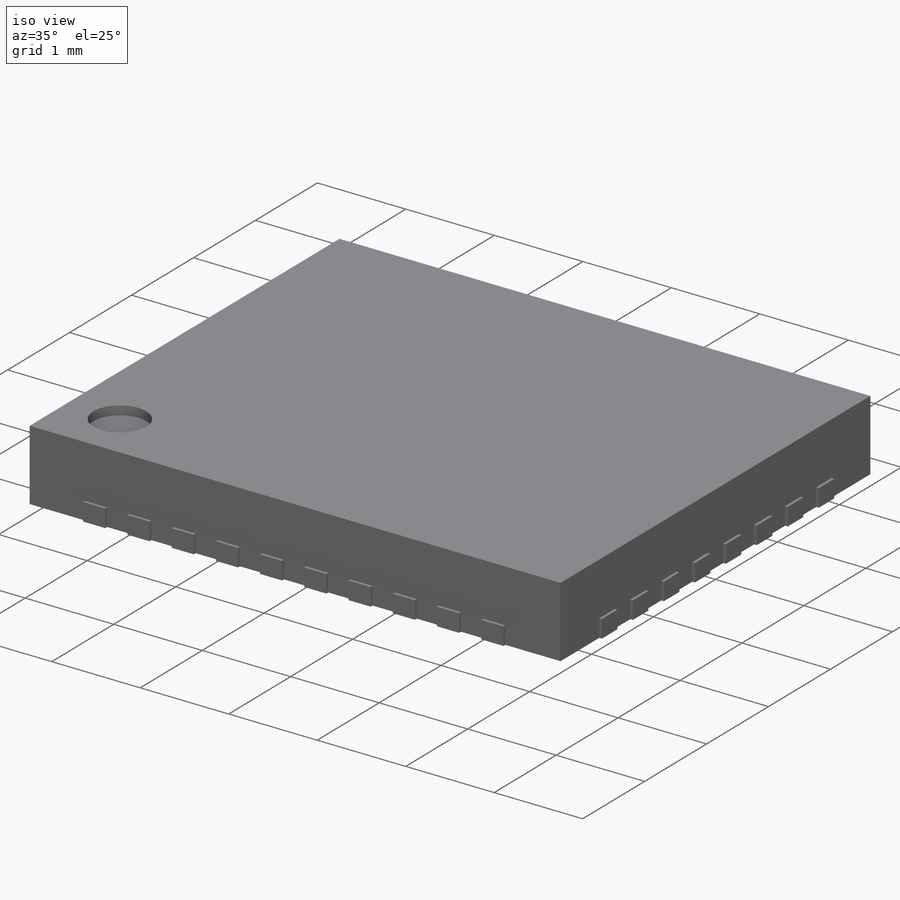
[diagram: iso view]
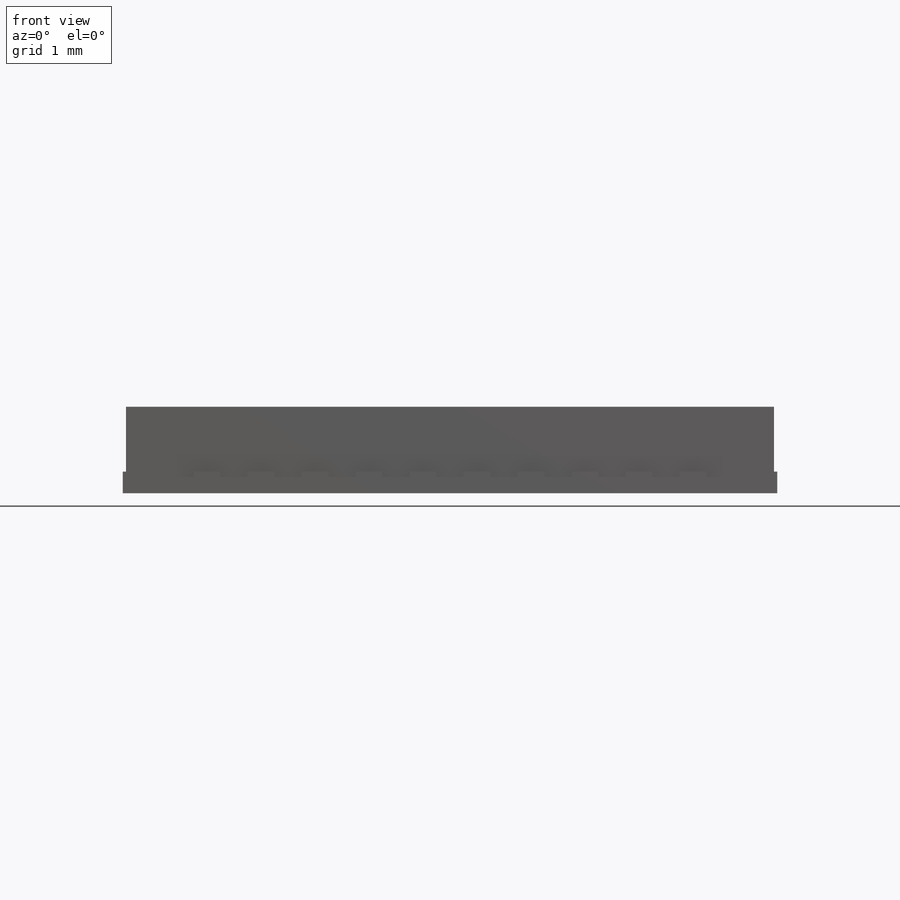
[diagram: front view]
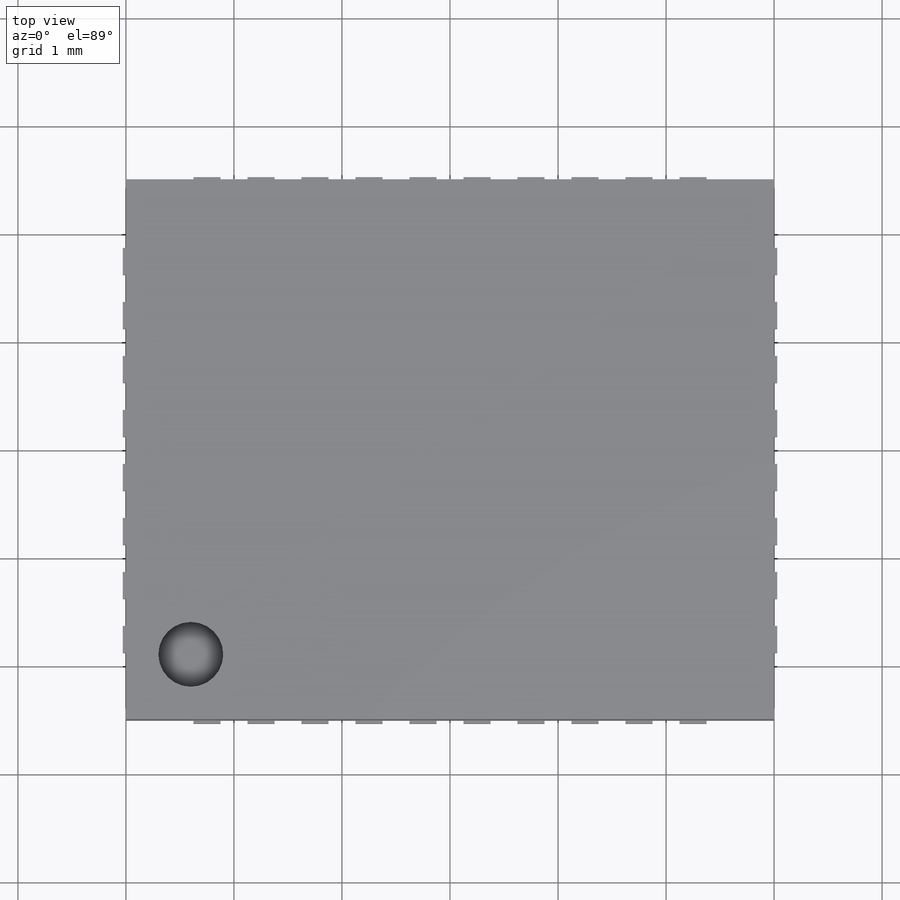
[diagram: top view]
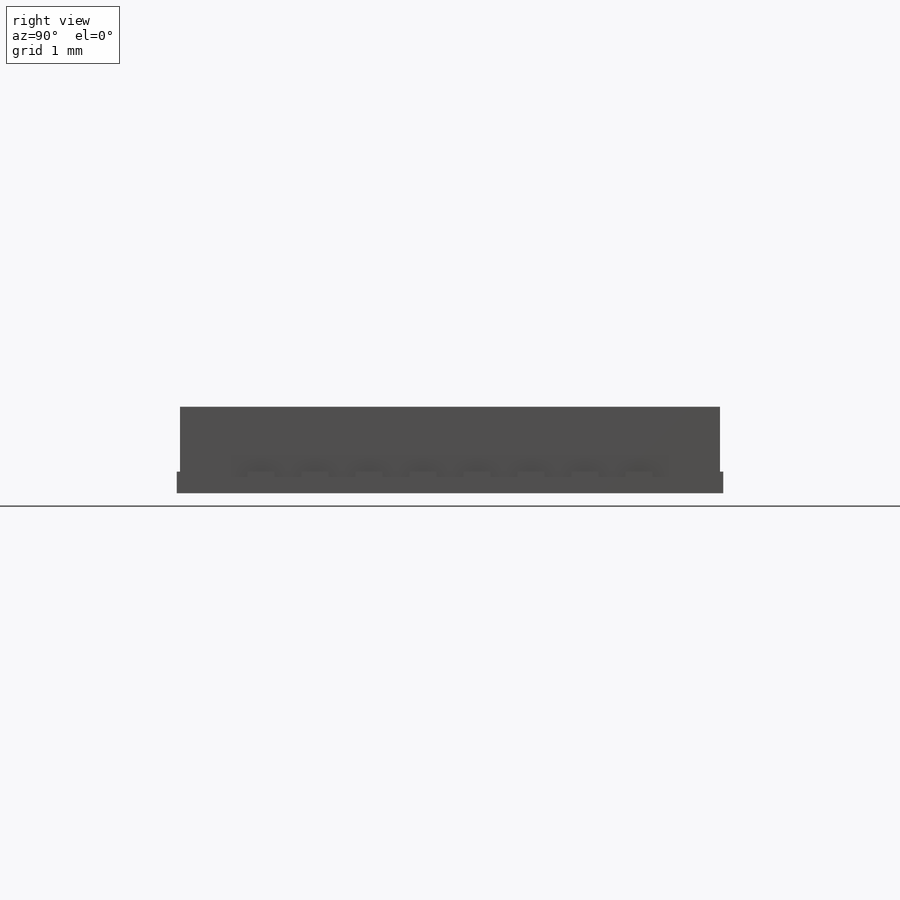
[diagram: right view]
SOLIDWORKS PART (.sldprt)
format: sldprt  version: not decoded by parser v0  size: 357,888 bytes
history: native  units: mm
features: sketch x4, extrude x3, pattern_linear x2, material x1, cut_extrude x1 (+12 scaffold rows collapsed)
feature tree (23):
  scaffold x12  (default folders/planes/origin — collapsed)
  material  "Material <not specified>"
  sketch  "Sketch1"  dims[D1=6.0mm D2=5.0mm]
  extrude  "Boss-Extrude1"  Depth=0.8mm
  sketch  "Sketch2"  dims[c1.D1=0.6mm c1.D3=0.6mm c1.D2=0.6mm c2.D3=0.6mm]
  cut_extrude  "Cut-Extrude1"  Depth=0.1mm
  sketch  "Sketch3"  dims[D1=0.25mm D2=0.25mm D3=0.2mm D4=6.0 D5=5.0]
  extrude  "Boss-Extrude2"  Depth=0.03mm
  pattern_linear  "LPattern1"  Count1=2 Count2=1 Spacing1=5.03mm Spacing2=10mm
  sketch  "Sketch4"  dims[D1=0.25mm D2=0.25mm D3=5.0 D4=4.0]
  extrude  "Boss-Extrude3"  Depth=0.03mm
  pattern_linear  "LPattern2"  Count1=2 Count2=1 Spacing1=6.03mm Spacing2=10mm
decode coverage: 10 of 10 modeling features carry decoded parameters
note: suppression state not decoded; provenance and decode notes live in map.json
